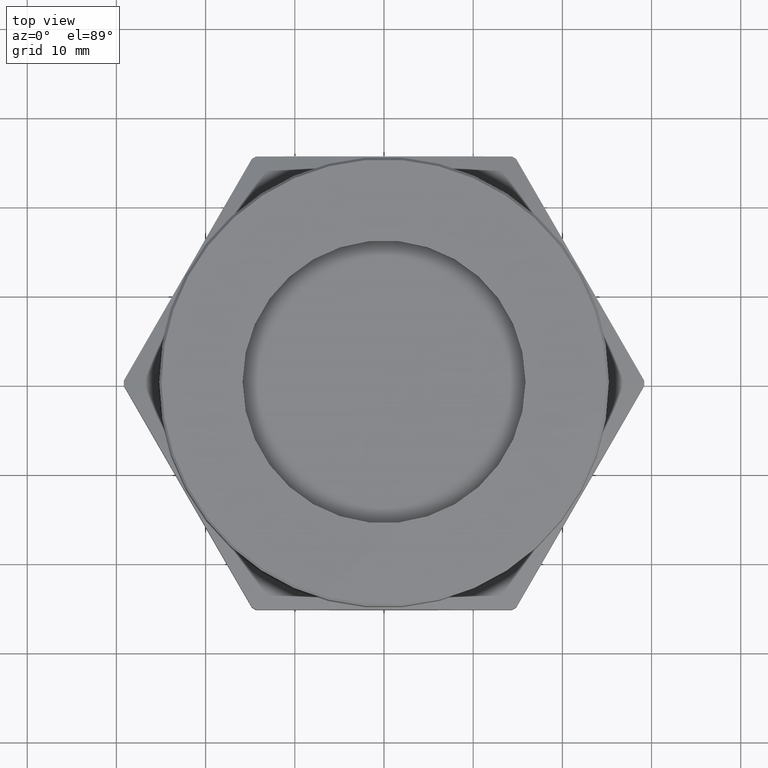
[diagram: clean part render]
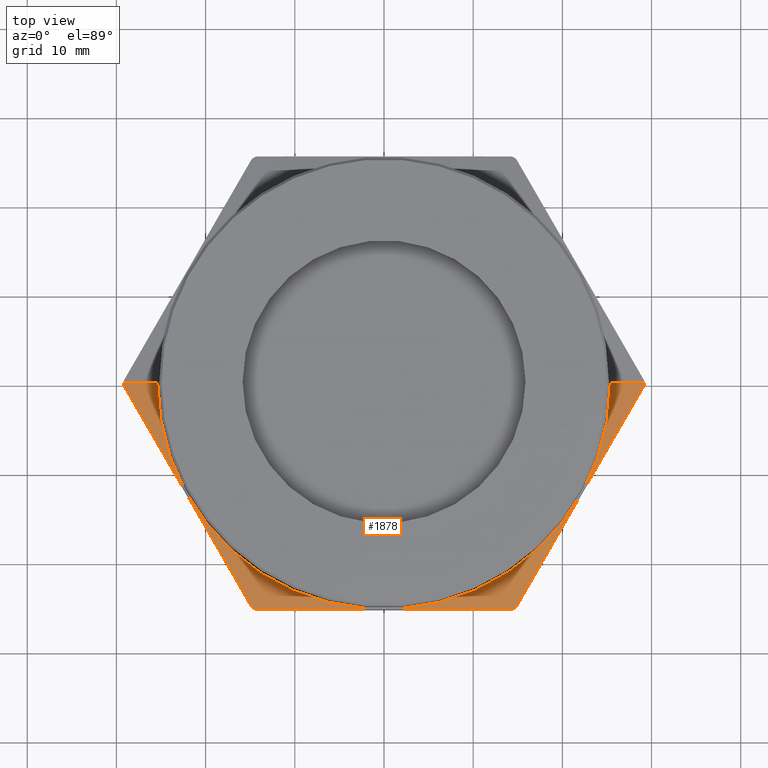
[diagram: same view with one face highlighted and labeled with its STEP entity id]
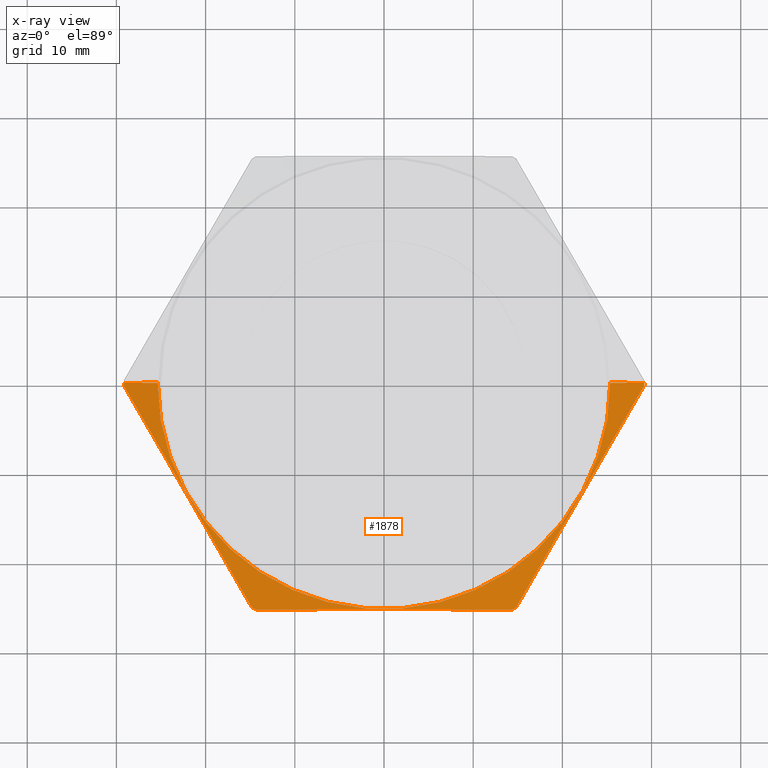
[diagram: x-ray of the same camera — body ghosted, the highlighted face saturated]
A machine part, top view. The second image highlights one B-rep face of the part: STEP entity #1878.
The next image is the same camera in x-ray: the body ghosted, the highlighted face saturated — about 0% of this face is hidden behind the body in this view.
In plain terms, the highlighted conical surface has half-angle 78 deg.
Its self-contained STEP definition (entity closure, byte-faithful):
#45 = EDGE_CURVE ( 'NONE', #2831, #2819, #1841, .T. ) ;
#46 = EDGE_CURVE ( 'NONE', #1382, #2799, #1840, .T. ) ;
#47 = EDGE_CURVE ( 'NONE', #2831, #2799, #2561, .T. ) ;
#58 = EDGE_CURVE ( 'NONE', #2803, #2819, #2572, .T. ) ;
#59 = EDGE_CURVE ( 'NONE', #1387, #2834, #2579, .T. ) ;
#64 = EDGE_CURVE ( 'NONE', #2803, #2834, #2779, .T. ) ;
#90 = AXIS2_PLACEMENT_3D ( 'NONE', #2470, #2471, #2472 ) ;
#93 = AXIS2_PLACEMENT_3D ( 'NONE', #2493, #2494, #2495 ) ;
#94 = AXIS2_PLACEMENT_3D ( 'NONE', #2498, #2499, #2500 ) ;
#122 = AXIS2_PLACEMENT_3D ( 'NONE', #344, #345, #346 ) ;
#139 = AXIS2_PLACEMENT_3D ( 'NONE', #503, #3399, #2836 ) ;
#163 = AXIS2_PLACEMENT_3D ( 'NONE', #3095, #3096, #3094 ) ;
#344 = CARTESIAN_POINT ( 'NONE',  ( 2.922657445627286600E-017, 0.0000000000000000000, 0.2386530914596897100 ) ) ;
#345 = DIRECTION ( 'NONE',  ( -6.123233995736748800E-017, -0.0000000000000000000, -1.000000000000000000 ) ) ;
#346 = DIRECTION ( 'NONE',  ( 1.000000000000000000, 0.0000000000000000000, -6.837574089836611800E-017 ) ) ;
#449 = DIRECTION ( 'NONE',  ( 0.9781476007338056900, 1.197885328332318400E-016, -0.2079116908177596200 ) ) ;
#453 = DIRECTION ( 'NONE',  ( -0.9781476007338056900, 0.0000000000000000000, -0.2079116908177593400 ) ) ;
#454 = CARTESIAN_POINT ( 'NONE',  ( -1.148700538379251200, 0.0000000000000000000, 0.2067985506311003600 ) ) ;
#455 = CARTESIAN_POINT ( 'NONE',  ( 1.148700538379251200, 1.406752437504991500E-016, 0.2067985506311001100 ) ) ;
#503 = CARTESIAN_POINT ( 'NONE',  ( 2.532551830986880400E-017, 0.0000000000000000000, 0.2067985506311002500 ) ) ;
#1327 = EDGE_CURVE ( 'NONE', #1416, #1426, #2623, .T. ) ;
#1352 = EDGE_CURVE ( 'NONE', #1416, #1387, #2646, .T. ) ;
#1360 = EDGE_CURVE ( 'NONE', #1426, #1411, #2659, .T. ) ;
#1361 = EDGE_CURVE ( 'NONE', #1382, #1411, #2658, .T. ) ;
#1382 = VERTEX_POINT ( 'NONE', #2948 ) ;
#1387 = VERTEX_POINT ( 'NONE', #2962 ) ;
#1411 = VERTEX_POINT ( 'NONE', #2984 ) ;
#1416 = VERTEX_POINT ( 'NONE', #2989 ) ;
#1426 = VERTEX_POINT ( 'NONE', #2999 ) ;
#1643 = EDGE_LOOP ( 'NONE', ( #1689, #1690, #1691, #1692, #1693, #1694, #1695, #1696, #1697, #1698 ) ) ;
#1689 = ORIENTED_EDGE ( 'NONE', *, *, #1352, .F. ) ;
#1690 = ORIENTED_EDGE ( 'NONE', *, *, #1327, .T. ) ;
#1691 = ORIENTED_EDGE ( 'NONE', *, *, #1360, .T. ) ;
#1692 = ORIENTED_EDGE ( 'NONE', *, *, #1361, .F. ) ;
#1693 = ORIENTED_EDGE ( 'NONE', *, *, #46, .T. ) ;
#1694 = ORIENTED_EDGE ( 'NONE', *, *, #47, .F. ) ;
#1695 = ORIENTED_EDGE ( 'NONE', *, *, #45, .T. ) ;
#1696 = ORIENTED_EDGE ( 'NONE', *, *, #58, .F. ) ;
#1697 = ORIENTED_EDGE ( 'NONE', *, *, #64, .T. ) ;
#1698 = ORIENTED_EDGE ( 'NONE', *, *, #59, .F. ) ;
#1840 = B_SPLINE_CURVE_WITH_KNOTS ( 'NONE', 3,
 ( #2460, #2459, #2449, #2461, #2462, #2463, #2464, #2465, #2466 ),
 .UNSPECIFIED., .F., .F.,
 ( 4, 2, 1, 2, 4 ),
 ( 1.912036473981085800E-006, 0.007180647299409302100, 0.01435938256234462100, 0.02153811782527994100, 0.02871685308821525900 ),
 .UNSPECIFIED. ) ;
#1841 = B_SPLINE_CURVE_WITH_KNOTS ( 'NONE', 3,
 ( #2450, #2423, #2439, #2452, #2453, #2454, #2455, #2456, #2457, #2458 ),
 .UNSPECIFIED., .F., .F.,
 ( 4, 2, 2, 2, 4 ),
 ( 0.02464900545862120900, 0.03185636149105701400, 0.03906371752349282300, 0.04627107355592863200, 0.05347842958836443400 ),
 .UNSPECIFIED. ) ;
#1878 = ADVANCED_FACE ( 'NONE', ( #2738 ), #2745, .T. ) ;
#2198 = CARTESIAN_POINT ( 'NONE',  ( -0.5833980312279295500, -0.9895249688775710200, 0.2067985506311003100 ) ) ;
#2219 = CARTESIAN_POINT ( 'NONE',  ( 0.5833980312279309900, -0.9895249688775702400, 0.2067985506311001700 ) ) ;
#2226 = CARTESIAN_POINT ( 'NONE',  ( 1.148652776340947100, -0.01047503112242860600, 0.2067985506311001100 ) ) ;
#2227 = CARTESIAN_POINT ( 'NONE',  ( 0.5652547451130175400, -1.000000000000000000, 0.2067985506311001700 ) ) ;
#2231 = CARTESIAN_POINT ( 'NONE',  ( -0.5652547451130169900, -1.000000000000000000, 0.2067985506311003100 ) ) ;
#2423 = CARTESIAN_POINT ( 'NONE',  ( -0.4711164411830074900, -1.000000000000000200, 0.2166449688443127200 ) ) ;
#2439 = CARTESIAN_POINT ( 'NONE',  ( -0.3766229811661878100, -1.000000000000000200, 0.2246520389839637100 ) ) ;
#2449 = CARTESIAN_POINT ( 'NONE',  ( -1.054443652155444800, -0.1736500207482869800, 0.2246333729393954500 ) ) ;
#2450 = CARTESIAN_POINT ( 'NONE',  ( -0.5652547451130169900, -1.000000000000000000, 0.2067985506311003100 ) ) ;
#2452 = CARTESIAN_POINT ( 'NONE',  ( -0.1879229405540641400, -0.9999999999999998900, 0.2355480782014255100 ) ) ;
#2453 = CARTESIAN_POINT ( 'NONE',  ( -0.09363075394074926700, -1.000000000000000200, 0.2384177409861324700 ) ) ;
#2454 = CARTESIAN_POINT ( 'NONE',  ( 0.09482434743077634800, -1.000000000000000200, 0.2383938348833287100 ) ) ;
#2455 = CARTESIAN_POINT ( 'NONE',  ( 0.1889872824914479700, -1.000000000000000200, 0.2355011711254284500 ) ) ;
#2456 = CARTESIAN_POINT ( 'NONE',  ( 0.3771984945786787100, -1.000000000000000200, 0.2246041291290312700 ) ) ;
#2457 = CARTESIAN_POINT ( 'NONE',  ( 0.4712474784352673800, -1.000000000000000200, 0.2166312629718527000 ) ) ;
#2458 = CARTESIAN_POINT ( 'NONE',  ( 0.5652547451130175400, -1.000000000000000000, 0.2067985506311001700 ) ) ;
#2459 = CARTESIAN_POINT ( 'NONE',  ( -1.101548214248195800, -0.09206252593535853300, 0.2166523763057225900 ) ) ;
#2460 = CARTESIAN_POINT ( 'NONE',  ( -1.148652776340947100, -0.01047503112242983500, 0.2067985506311003600 ) ) ;
#2461 = CARTESIAN_POINT ( 'NONE',  ( -0.9602345279699412400, -0.3368250103741436400, 0.2355257911130816100 ) ) ;
#2462 = CARTESIAN_POINT ( 'NONE',  ( -0.8660254037844381500, -0.5000000000000005600, 0.2412858604618685300 ) ) ;
#2463 = CARTESIAN_POINT ( 'NONE',  ( -0.7718162795989355100, -0.6631749896258571900, 0.2355257911130816100 ) ) ;
#2464 = CARTESIAN_POINT ( 'NONE',  ( -0.6776071554134326400, -0.8263499792517143800, 0.2246333729393954200 ) ) ;
#2465 = CARTESIAN_POINT ( 'NONE',  ( -0.6305025933206812600, -0.9079374740646427600, 0.2166523763057225900 ) ) ;
#2466 = CARTESIAN_POINT ( 'NONE',  ( -0.5833980312279295500, -0.9895249688775710200, 0.2067985506311003100 ) ) ;
#2470 = CARTESIAN_POINT ( 'NONE',  ( 2.532551830986880400E-017, 0.0000000000000000000, 0.2067985506311002500 ) ) ;
#2471 = DIRECTION ( 'NONE',  ( -1.224646799147349800E-016, -0.0000000000000000000, -1.000000000000000000 ) ) ;
#2472 = DIRECTION ( 'NONE',  ( -1.000000000000000000, 0.0000000000000000000, 1.189103644679552300E-016 ) ) ;
#2488 = CARTESIAN_POINT ( 'NONE',  ( 0.6305025933206820400, -0.9079374740646418700, 0.2166523763057224800 ) ) ;
#2493 = CARTESIAN_POINT ( 'NONE',  ( 2.532551830986880400E-017, 0.0000000000000000000, 0.2067985506311002500 ) ) ;
#2494 = DIRECTION ( 'NONE',  ( -1.224646799147349800E-016, -0.0000000000000000000, -1.000000000000000000 ) ) ;
#2495 = DIRECTION ( 'NONE',  ( -1.000000000000000000, 0.0000000000000000000, 1.189103644679552300E-016 ) ) ;
#2496 = CARTESIAN_POINT ( 'NONE',  ( 0.6776071554134335300, -0.8263499792517131600, 0.2246333729393953400 ) ) ;
#2498 = CARTESIAN_POINT ( 'NONE',  ( 2.532551830986880400E-017, 0.0000000000000000000, 0.2067985506311002500 ) ) ;
#2499 = DIRECTION ( 'NONE',  ( -1.224646799147349800E-016, -0.0000000000000000000, -1.000000000000000000 ) ) ;
#2500 = DIRECTION ( 'NONE',  ( -1.000000000000000000, 0.0000000000000000000, 1.189103644679552300E-016 ) ) ;
#2516 = CARTESIAN_POINT ( 'NONE',  ( 0.5833980312279309900, -0.9895249688775702400, 0.2067985506311001700 ) ) ;
#2517 = CARTESIAN_POINT ( 'NONE',  ( 0.7718162795989365100, -0.6631749896258565300, 0.2355257911130815300 ) ) ;
#2518 = CARTESIAN_POINT ( 'NONE',  ( 0.8660254037844390400, -0.4999999999999991700, 0.2412858604618684200 ) ) ;
#2519 = CARTESIAN_POINT ( 'NONE',  ( 0.9602345279699418000, -0.3368250103741424800, 0.2355257911130815300 ) ) ;
#2520 = CARTESIAN_POINT ( 'NONE',  ( 1.054443652155444800, -0.1736500207482855100, 0.2246333729393952500 ) ) ;
#2521 = CARTESIAN_POINT ( 'NONE',  ( 1.101548214248195800, -0.09206252593535709000, 0.2166523763057224500 ) ) ;
#2522 = CARTESIAN_POINT ( 'NONE',  ( 1.148652776340947100, -0.01047503112242860600, 0.2067985506311001100 ) ) ;
#2561 = CIRCLE ( 'NONE', #90, 1.148700538379251200 ) ;
#2572 = CIRCLE ( 'NONE', #93, 1.148700538379251200 ) ;
#2579 = CIRCLE ( 'NONE', #94, 1.148700538379251200 ) ;
#2623 = CIRCLE ( 'NONE', #122, 0.9988367064734585700 ) ;
#2646 = LINE ( 'NONE', #455, #2654 ) ;
#2654 = VECTOR ( 'NONE', #449, 39.37007874015747400 ) ;
#2658 = CIRCLE ( 'NONE', #139, 1.148700538379251200 ) ;
#2659 = LINE ( 'NONE', #454, #2660 ) ;
#2660 = VECTOR ( 'NONE', #453, 39.37007874015748900 ) ;
#2738 = FACE_OUTER_BOUND ( 'NONE', #1643, .T. ) ;
#2745 = CONICAL_SURFACE ( 'NONE', #163, 1.148700538379251200, 1.361356816555576900 ) ;
#2779 = B_SPLINE_CURVE_WITH_KNOTS ( 'NONE', 3,
 ( #2516, #2488, #2496, #2517, #2518, #2519, #2520, #2521, #2522 ),
 .UNSPECIFIED., .F., .F.,
 ( 4, 2, 1, 2, 4 ),
 ( 1.912036473918081400E-006, 0.007180647299409235300, 0.01435938256234455200, 0.02153811782527986800, 0.02871685308821518600 ),
 .UNSPECIFIED. ) ;
#2799 = VERTEX_POINT ( 'NONE', #2198 ) ;
#2803 = VERTEX_POINT ( 'NONE', #2219 ) ;
#2819 = VERTEX_POINT ( 'NONE', #2227 ) ;
#2831 = VERTEX_POINT ( 'NONE', #2231 ) ;
#2834 = VERTEX_POINT ( 'NONE', #2226 ) ;
#2836 = DIRECTION ( 'NONE',  ( -1.000000000000000000, 0.0000000000000000000, 1.189103644679552300E-016 ) ) ;
#2948 = CARTESIAN_POINT ( 'NONE',  ( -1.148652776340947100, -0.01047503112242983500, 0.2067985506311003600 ) ) ;
#2962 = CARTESIAN_POINT ( 'NONE',  ( 1.148700538379251200, 1.406752437504991500E-016, 0.2067985506311001100 ) ) ;
#2984 = CARTESIAN_POINT ( 'NONE',  ( -1.148700538379251200, 0.0000000000000000000, 0.2067985506311003600 ) ) ;
#2989 = CARTESIAN_POINT ( 'NONE',  ( 0.9988367064734584600, 1.223222175453605200E-016, 0.2386530914596896300 ) ) ;
#2999 = CARTESIAN_POINT ( 'NONE',  ( -0.9988367064734590100, 0.0000000000000000000, 0.2386530914596897700 ) ) ;
#3094 = DIRECTION ( 'NONE',  ( -1.000000000000000000, 0.0000000000000000000, 1.189103644679552300E-016 ) ) ;
#3095 = CARTESIAN_POINT ( 'NONE',  ( 2.532551830986880400E-017, 0.0000000000000000000, 0.2067985506311002500 ) ) ;
#3096 = DIRECTION ( 'NONE',  ( -1.224646799147349800E-016, -0.0000000000000000000, -1.000000000000000000 ) ) ;
#3399 = DIRECTION ( 'NONE',  ( -1.224646799147349800E-016, -0.0000000000000000000, -1.000000000000000000 ) ) ;